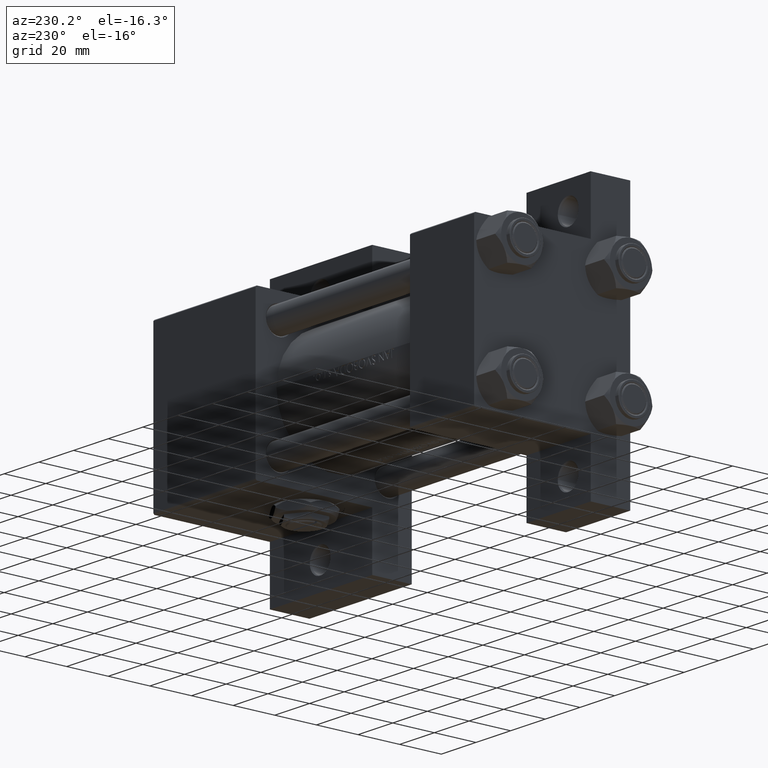
[diagram: clean part render]
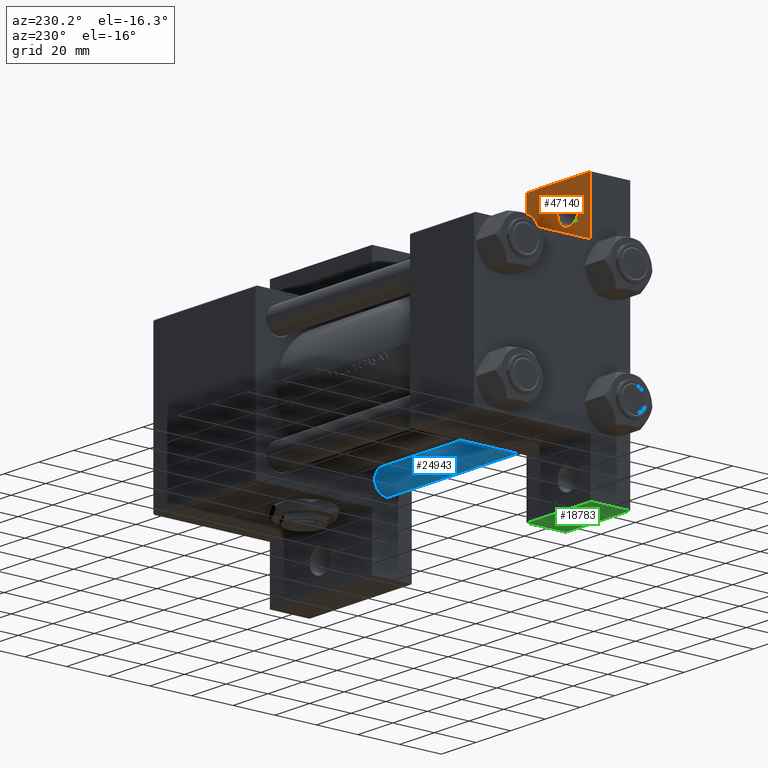
[diagram: same view with three faces highlighted in distinct colors, each labeled with its STEP entity id]
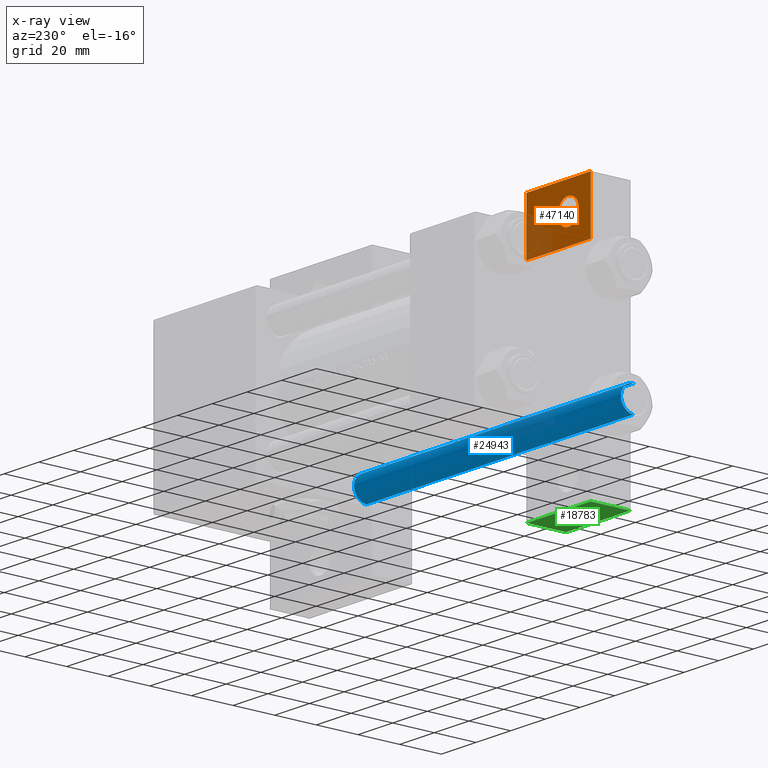
[diagram: x-ray of the same camera — body ghosted, the three highlighted faces saturated]
A machine part, auxiliary view with three faces highlighted in distinct colors.
The next image is the same camera in x-ray (body ghosted, the three faces saturated) — at least one of them is partly hidden behind the body in this view.
Their STEP definitions:

[orange] entity #47140 — the highlighted planar face has unit normal (0, -1, 0).
#697 = EDGE_LOOP ( 'NONE', ( #33119, #40922, #45610, #10925 ) ) ;
#912 = CARTESIAN_POINT ( 'NONE',  ( -7.145701223179004046E-16, -37.50000000000000711, -18.50000000000000355 ) ) ;
#1077 = EDGE_CURVE ( 'NONE', #22176, #43617, #20502, .T. ) ;
#4086 = AXIS2_PLACEMENT_3D ( 'NONE', #24213, #46888, #5777 ) ;
#4602 = CARTESIAN_POINT ( 'NONE',  ( 0.000000000000000000, 0.000000000000000000, -18.50000000000000000 ) ) ;
#4745 = EDGE_CURVE ( 'NONE', #7100, #14159, #15981, .T. ) ;
#4974 = VECTOR ( 'NONE', #26213, 1000.000000000000000 ) ;
#5339 = PLANE ( 'NONE',  #17303 ) ;
#5777 = DIRECTION ( 'NONE',  ( -1.000000000000000000, 0.000000000000000000, 0.000000000000000000 ) ) ;
#6060 = DIRECTION ( 'NONE',  ( 4.278042683914906889E-17, -1.000000000000000000, 0.000000000000000000 ) ) ;
#7100 = VERTEX_POINT ( 'NONE', #42062 ) ;
#8032 = EDGE_CURVE ( 'NONE', #43560, #13500, #48899, .T. ) ;
#8543 = VECTOR ( 'NONE', #11430, 1000.000000000000000 ) ;
#10925 = ORIENTED_EDGE ( 'NONE', *, *, #46915, .T. ) ;
#11430 = DIRECTION ( 'NONE',  ( -1.000000000000000000, 0.000000000000000000, 0.000000000000000000 ) ) ;
#13500 = VERTEX_POINT ( 'NONE', #26912 ) ;
#14159 = VERTEX_POINT ( 'NONE', #20790 ) ;
#14186 = CARTESIAN_POINT ( 'NONE',  ( -7.145701223179000102E-16, -37.50000000000001421, -18.49999999999999645 ) ) ;
#15981 = CIRCLE ( 'NONE', #4086, 5.999500000000050015 ) ;
#17303 = AXIS2_PLACEMENT_3D ( 'NONE', #4602, #46695, #23541 ) ;
#17412 = VECTOR ( 'NONE', #27622, 1000.000000000000000 ) ;
#18900 = LINE ( 'NONE', #14186, #8543 ) ;
#20502 = LINE ( 'NONE', #47675, #45321 ) ;
#20790 = CARTESIAN_POINT ( 'NONE',  ( 7.000499999999947320, -51.00000000000000711, -18.50000000000000000 ) ) ;
#22176 = VERTEX_POINT ( 'NONE', #912 ) ;
#22441 = DIRECTION ( 'NONE',  ( -1.000000000000000000, 0.000000000000000000, 0.000000000000000000 ) ) ;
#23541 = DIRECTION ( 'NONE',  ( -1.000000000000000000, 0.000000000000000000, -0.000000000000000000 ) ) ;
#23784 = FACE_OUTER_BOUND ( 'NONE', #697, .T. ) ;
#24213 = CARTESIAN_POINT ( 'NONE',  ( 12.99999999999999822, -51.00000000000000711, -18.50000000000000000 ) ) ;
#25803 = AXIS2_PLACEMENT_3D ( 'NONE', #36907, #30158, #22441 ) ;
#26213 = DIRECTION ( 'NONE',  ( -0.000000000000000000, 1.000000000000000000, 0.000000000000000000 ) ) ;
#26912 = CARTESIAN_POINT ( 'NONE',  ( 37.00000000000000000, -37.50000000000000000, -18.50000000000000355 ) ) ;
#27622 = DIRECTION ( 'NONE',  ( 1.000000000000000000, 0.000000000000000000, 0.000000000000000000 ) ) ;
#28781 = ORIENTED_EDGE ( 'NONE', *, *, #32039, .T. ) ;
#30158 = DIRECTION ( 'NONE',  ( 0.000000000000000000, 0.000000000000000000, -1.000000000000000000 ) ) ;
#31487 = FACE_BOUND ( 'NONE', #31876, .T. ) ;
#31876 = EDGE_LOOP ( 'NONE', ( #43874, #28781 ) ) ;
#32039 = EDGE_CURVE ( 'NONE', #14159, #7100, #35340, .T. ) ;
#33119 = ORIENTED_EDGE ( 'NONE', *, *, #8032, .T. ) ;
#33401 = CARTESIAN_POINT ( 'NONE',  ( 37.00000000000000000, -63.50000000000000000, -18.50000000000000355 ) ) ;
#35098 = CARTESIAN_POINT ( 'NONE',  ( 37.00000000000000000, -63.49999999999998579, -18.50000000000000355 ) ) ;
#35340 = CIRCLE ( 'NONE', #25803, 5.999500000000050015 ) ;
#36169 = CARTESIAN_POINT ( 'NONE',  ( 3.977209754999747208E-16, -63.50000000000000000, -18.50000000000000355 ) ) ;
#36907 = CARTESIAN_POINT ( 'NONE',  ( 12.99999999999999822, -51.00000000000000711, -18.50000000000000000 ) ) ;
#38593 = LINE ( 'NONE', #45577, #17412 ) ;
#40922 = ORIENTED_EDGE ( 'NONE', *, *, #48062, .T. ) ;
#42062 = CARTESIAN_POINT ( 'NONE',  ( 18.99950000000004735, -51.00000000000000711, -18.50000000000000000 ) ) ;
#43560 = VERTEX_POINT ( 'NONE', #33401 ) ;
#43617 = VERTEX_POINT ( 'NONE', #36169 ) ;
#43874 = ORIENTED_EDGE ( 'NONE', *, *, #4745, .T. ) ;
#45321 = VECTOR ( 'NONE', #6060, 1000.000000000000000 ) ;
#45577 = CARTESIAN_POINT ( 'NONE',  ( 3.977209754999747208E-16, -63.50000000000000000, -18.50000000000000355 ) ) ;
#45610 = ORIENTED_EDGE ( 'NONE', *, *, #1077, .T. ) ;
#46695 = DIRECTION ( 'NONE',  ( 0.000000000000000000, 0.000000000000000000, -1.000000000000000000 ) ) ;
#46888 = DIRECTION ( 'NONE',  ( 0.000000000000000000, 0.000000000000000000, -1.000000000000000000 ) ) ;
#46915 = EDGE_CURVE ( 'NONE', #43617, #43560, #38593, .T. ) ;
#47140 = ADVANCED_FACE ( 'NONE', ( #31487, #23784 ), #5339, .F. ) ;
#47675 = CARTESIAN_POINT ( 'NONE',  ( 3.977209754999744250E-16, -63.49999999999998579, -18.50000000000000355 ) ) ;
#48062 = EDGE_CURVE ( 'NONE', #13500, #22176, #18900, .T. ) ;
#48899 = LINE ( 'NONE', #35098, #4974 ) ;

[blue] entity #24943 — the highlighted cylindrical surface (edge-blend (fillet) strip) has radius 6 mm, axis along (-1, 0, 0).
#497 = LINE ( 'NONE', #27372, #23038 ) ;
#1430 = EDGE_CURVE ( 'NONE', #37577, #47030, #497, .T. ) ;
#2079 = ORIENTED_EDGE ( 'NONE', *, *, #14233, .T. ) ;
#2294 = EDGE_LOOP ( 'NONE', ( #14878, #28741, #35798, #2079 ) ) ;
#3248 = CARTESIAN_POINT ( 'NONE',  ( 6.000000000000000888, 7.347880794884120722E-16, 154.5000000000000000 ) ) ;
#5857 = CARTESIAN_POINT ( 'NONE',  ( 0.000000000000000000, 0.000000000000000000, 0.4999999999999726885 ) ) ;
#8123 = FACE_OUTER_BOUND ( 'NONE', #2294, .T. ) ;
#8537 = DIRECTION ( 'NONE',  ( -0.000000000000000000, -0.000000000000000000, -1.000000000000000000 ) ) ;
#9830 = DIRECTION ( 'NONE',  ( -0.000000000000000000, -0.000000000000000000, 1.000000000000000000 ) ) ;
#10890 = CYLINDRICAL_SURFACE ( 'NONE', #32715, 6.000000000000000888 ) ;
#11620 = DIRECTION ( 'NONE',  ( -1.000000000000000000, 0.000000000000000000, 0.000000000000000000 ) ) ;
#13003 = AXIS2_PLACEMENT_3D ( 'NONE', #46355, #16211, #42841 ) ;
#14233 = EDGE_CURVE ( 'NONE', #23663, #47030, #33696, .T. ) ;
#14411 = EDGE_CURVE ( 'NONE', #26547, #23663, #30953, .T. ) ;
#14878 = ORIENTED_EDGE ( 'NONE', *, *, #1430, .F. ) ;
#16211 = DIRECTION ( 'NONE',  ( 0.000000000000000000, 0.000000000000000000, -1.000000000000000000 ) ) ;
#21047 = DIRECTION ( 'NONE',  ( 1.000000000000000000, 0.000000000000000000, 0.000000000000000000 ) ) ;
#22557 = VECTOR ( 'NONE', #8537, 1000.000000000000000 ) ;
#23038 = VECTOR ( 'NONE', #42556, 1000.000000000000000 ) ;
#23663 = VERTEX_POINT ( 'NONE', #38616 ) ;
#24943 = ADVANCED_FACE ( 'NONE', ( #8123 ), #10890, .T. ) ;
#26075 = CARTESIAN_POINT ( 'NONE',  ( 0.000000000000000000, 0.000000000000000000, 155.0000000000000000 ) ) ;
#26547 = VERTEX_POINT ( 'NONE', #26931 ) ;
#26931 = CARTESIAN_POINT ( 'NONE',  ( -6.000000000000000888, 0.000000000000000000, 154.5000000000000000 ) ) ;
#27372 = CARTESIAN_POINT ( 'NONE',  ( 6.000000000000000888, 7.347880794884120722E-16, 155.0000000000000000 ) ) ;
#27952 = CARTESIAN_POINT ( 'NONE',  ( -6.000000000000000888, 0.000000000000000000, 155.0000000000000000 ) ) ;
#28741 = ORIENTED_EDGE ( 'NONE', *, *, #34708, .T. ) ;
#30953 = LINE ( 'NONE', #27952, #22557 ) ;
#32715 = AXIS2_PLACEMENT_3D ( 'NONE', #26075, #49005, #11620 ) ;
#33696 = CIRCLE ( 'NONE', #34503, 6.000000000000000888 ) ;
#34245 = CARTESIAN_POINT ( 'NONE',  ( 6.000000000000000888, 7.347880794884120722E-16, 0.4999999999999726885 ) ) ;
#34503 = AXIS2_PLACEMENT_3D ( 'NONE', #5857, #9830, #21047 ) ;
#34708 = EDGE_CURVE ( 'NONE', #37577, #26547, #45643, .T. ) ;
#35798 = ORIENTED_EDGE ( 'NONE', *, *, #14411, .T. ) ;
#37577 = VERTEX_POINT ( 'NONE', #3248 ) ;
#38616 = CARTESIAN_POINT ( 'NONE',  ( -6.000000000000000888, 0.000000000000000000, 0.4999999999999726885 ) ) ;
#42556 = DIRECTION ( 'NONE',  ( -0.000000000000000000, -0.000000000000000000, -1.000000000000000000 ) ) ;
#42841 = DIRECTION ( 'NONE',  ( 1.000000000000000000, 0.000000000000000000, 0.000000000000000000 ) ) ;
#45643 = CIRCLE ( 'NONE', #13003, 6.000000000000000888 ) ;
#46355 = CARTESIAN_POINT ( 'NONE',  ( 0.000000000000000000, 0.000000000000000000, 154.5000000000000000 ) ) ;
#47030 = VERTEX_POINT ( 'NONE', #34245 ) ;
#49005 = DIRECTION ( 'NONE',  ( -0.000000000000000000, -0.000000000000000000, -1.000000000000000000 ) ) ;

[green] entity #18783 — the highlighted planar face has unit normal (0, -0, -1).
#81 = DIRECTION ( 'NONE',  ( 0.000000000000000000, -1.734723475976806848E-16, -1.000000000000000000 ) ) ;
#1682 = ORIENTED_EDGE ( 'NONE', *, *, #14967, .F. ) ;
#1731 = VECTOR ( 'NONE', #81, 1000.000000000000000 ) ;
#2024 = AXIS2_PLACEMENT_3D ( 'NONE', #17926, #9955, #36602 ) ;
#3569 = CARTESIAN_POINT ( 'NONE',  ( 1.595073532467135441E-14, 63.50000000000000000, -18.50000000000000355 ) ) ;
#3818 = EDGE_LOOP ( 'NONE', ( #26910, #31782, #1682, #45899 ) ) ;
#4783 = LINE ( 'NONE', #20211, #24027 ) ;
#8294 = VECTOR ( 'NONE', #40296, 1000.000000000000000 ) ;
#8960 = VERTEX_POINT ( 'NONE', #3569 ) ;
#9782 = EDGE_CURVE ( 'NONE', #8960, #47455, #4783, .T. ) ;
#9955 = DIRECTION ( 'NONE',  ( 0.000000000000000000, 1.000000000000000000, -1.734723475976806848E-16 ) ) ;
#10658 = EDGE_CURVE ( 'NONE', #12446, #29246, #40499, .T. ) ;
#12446 = VERTEX_POINT ( 'NONE', #22246 ) ;
#13895 = CARTESIAN_POINT ( 'NONE',  ( 1.595073532467135441E-14, 63.50000000000000000, -18.50000000000000355 ) ) ;
#14418 = DIRECTION ( 'NONE',  ( 1.000000000000000000, 0.000000000000000000, 0.000000000000000000 ) ) ;
#14967 = EDGE_CURVE ( 'NONE', #47455, #29246, #34320, .T. ) ;
#16957 = EDGE_CURVE ( 'NONE', #12446, #8960, #28831, .T. ) ;
#17926 = CARTESIAN_POINT ( 'NONE',  ( 1.595073532467135441E-14, 63.50000000000001421, 26.72167621838005047 ) ) ;
#18783 = ADVANCED_FACE ( 'NONE', ( #40579 ), #43835, .T. ) ;
#20211 = CARTESIAN_POINT ( 'NONE',  ( 1.595073532467135441E-14, 63.50000000000001421, 26.72167621838005047 ) ) ;
#22246 = CARTESIAN_POINT ( 'NONE',  ( 37.00000000000001421, 63.50000000000000000, -18.50000000000000355 ) ) ;
#23959 = DIRECTION ( 'NONE',  ( 0.000000000000000000, -1.734723475976806848E-16, -1.000000000000000000 ) ) ;
#24027 = VECTOR ( 'NONE', #23959, 1000.000000000000000 ) ;
#26910 = ORIENTED_EDGE ( 'NONE', *, *, #16957, .F. ) ;
#28831 = LINE ( 'NONE', #13895, #8294 ) ;
#29246 = VERTEX_POINT ( 'NONE', #44259 ) ;
#30449 = CARTESIAN_POINT ( 'NONE',  ( 37.00000000000001421, 63.50000000000001421, 26.72167621838005047 ) ) ;
#31782 = ORIENTED_EDGE ( 'NONE', *, *, #10658, .T. ) ;
#32083 = VECTOR ( 'NONE', #14418, 1000.000000000000000 ) ;
#34320 = LINE ( 'NONE', #48551, #32083 ) ;
#36602 = DIRECTION ( 'NONE',  ( 0.000000000000000000, 1.734723475976806848E-16, 1.000000000000000000 ) ) ;
#40296 = DIRECTION ( 'NONE',  ( -1.000000000000000000, 0.000000000000000000, 0.000000000000000000 ) ) ;
#40499 = LINE ( 'NONE', #30449, #1731 ) ;
#40579 = FACE_OUTER_BOUND ( 'NONE', #3818, .T. ) ;
#43835 = PLANE ( 'NONE',  #2024 ) ;
#44259 = CARTESIAN_POINT ( 'NONE',  ( 37.00000000000001421, 63.50000000000000000, -37.50000000000002132 ) ) ;
#44660 = CARTESIAN_POINT ( 'NONE',  ( 1.595073532467135441E-14, 63.50000000000000000, -37.50000000000002132 ) ) ;
#45899 = ORIENTED_EDGE ( 'NONE', *, *, #9782, .F. ) ;
#47455 = VERTEX_POINT ( 'NONE', #44660 ) ;
#48551 = CARTESIAN_POINT ( 'NONE',  ( 1.595073532467135441E-14, 63.50000000000000000, -37.50000000000002132 ) ) ;